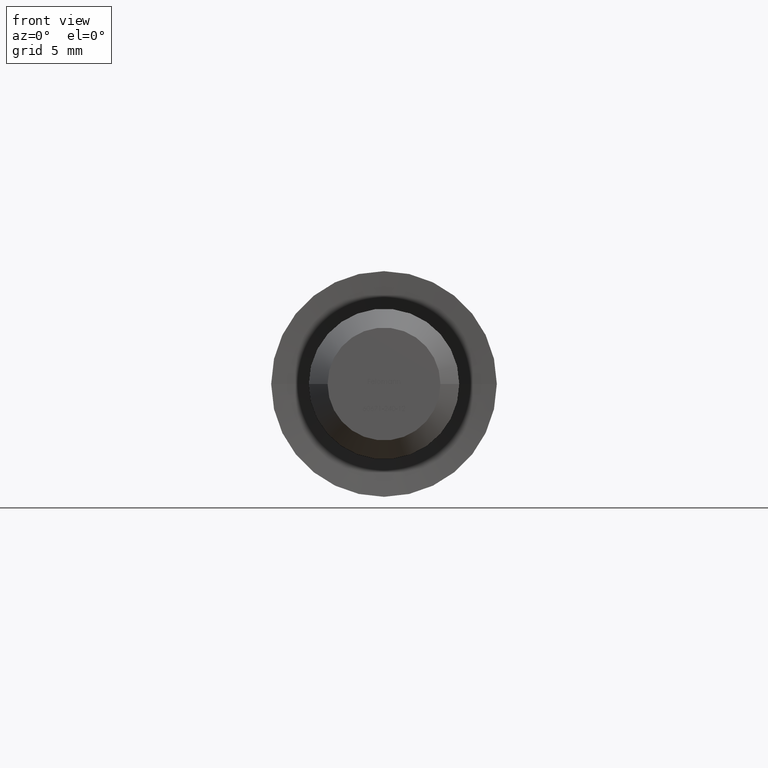
[diagram: clean part render]
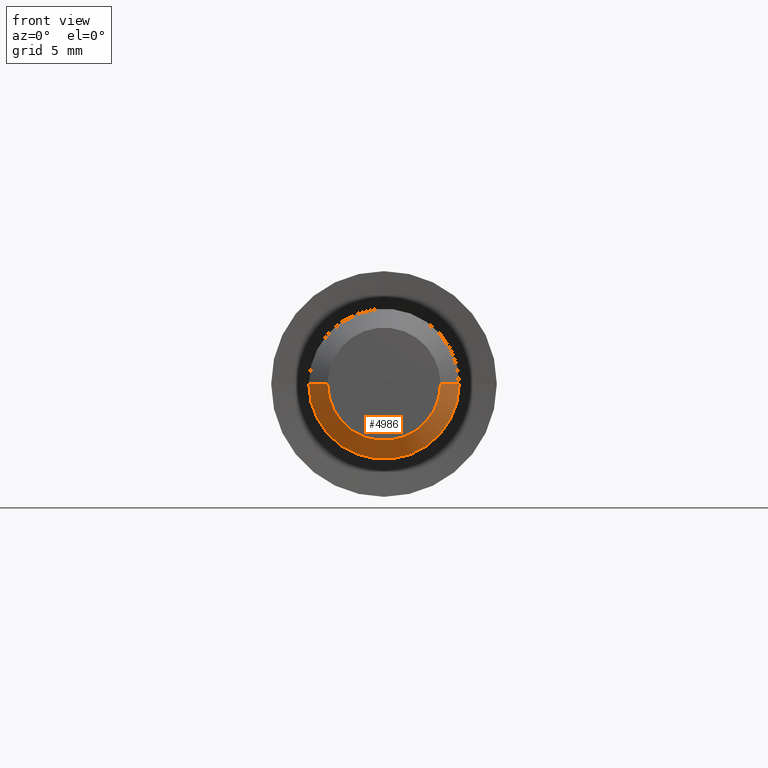
[diagram: same view with one face highlighted and labeled with its STEP entity id]
A machine part, front view. The second image highlights one B-rep face of the part: STEP entity #4986.
In plain terms, the highlighted conical surface has half-angle 45 deg.
Its self-contained STEP definition (entity closure, byte-faithful):
#610 = CARTESIAN_POINT ( 'NONE',  ( 7.369629889236875300E-033, -15.00000000000000000, 0.0000000000000000000 ) ) ;
#686 = EDGE_CURVE ( 'NONE', #12993, #12552, #10944, .T. ) ;
#1645 = DIRECTION ( 'NONE',  ( 0.7071067811865472400, 0.7071067811865479100, 8.659560562354930400E-017 ) ) ;
#1872 = DIRECTION ( 'NONE',  ( -0.7071067811865472400, 0.7071067811865479100, 0.0000000000000000000 ) ) ;
#2067 = CIRCLE ( 'NONE', #2475, 4.000000000000001800 ) ;
#2107 = EDGE_LOOP ( 'NONE', ( #7807, #12509, #11349, #5605 ) ) ;
#2199 = CONICAL_SURFACE ( 'NONE', #5267, 3.000000000000001800, 0.7853981633974479500 ) ;
#2475 = AXIS2_PLACEMENT_3D ( 'NONE', #3629, #4560, #12708 ) ;
#2492 = CARTESIAN_POINT ( 'NONE',  ( 3.000000000000001800, -15.00000000000000000, 4.286263797015738100E-016 ) ) ;
#2756 = CARTESIAN_POINT ( 'NONE',  ( -3.000000000000001800, -15.00000000000000000, 0.0000000000000000000 ) ) ;
#3239 = EDGE_CURVE ( 'NONE', #9325, #4808, #2067, .T. ) ;
#3629 = CARTESIAN_POINT ( 'NONE',  ( 4.956352788505168300E-017, -13.99999999999999800, 0.0000000000000000000 ) ) ;
#4560 = DIRECTION ( 'NONE',  ( -4.956352788505162800E-017, -1.000000000000000000, -0.0000000000000000000 ) ) ;
#4566 = DIRECTION ( 'NONE',  ( -4.956352788505162800E-017, -1.000000000000000000, -0.0000000000000000000 ) ) ;
#4808 = VERTEX_POINT ( 'NONE', #12805 ) ;
#4986 = ADVANCED_FACE ( 'NONE', ( #7590 ), #2199, .T. ) ;
#5082 = DIRECTION ( 'NONE',  ( 4.956352788505162800E-017, 1.000000000000000000, 0.0000000000000000000 ) ) ;
#5200 = CARTESIAN_POINT ( 'NONE',  ( 7.369629889236875300E-033, -15.00000000000000000, 0.0000000000000000000 ) ) ;
#5267 = AXIS2_PLACEMENT_3D ( 'NONE', #5200, #5082, #10125 ) ;
#5605 = ORIENTED_EDGE ( 'NONE', *, *, #3239, .T. ) ;
#5934 = VECTOR ( 'NONE', #1645, 999.9999999999998900 ) ;
#6791 = CARTESIAN_POINT ( 'NONE',  ( -3.000000000000001800, -15.00000000000000000, 0.0000000000000000000 ) ) ;
#7385 = EDGE_CURVE ( 'NONE', #12993, #9325, #10141, .T. ) ;
#7590 = FACE_OUTER_BOUND ( 'NONE', #2107, .T. ) ;
#7807 = ORIENTED_EDGE ( 'NONE', *, *, #9907, .F. ) ;
#8724 = VECTOR ( 'NONE', #1872, 999.9999999999998900 ) ;
#8767 = CARTESIAN_POINT ( 'NONE',  ( -4.000000000000001800, -13.99999999999999800, 0.0000000000000000000 ) ) ;
#9325 = VERTEX_POINT ( 'NONE', #8767 ) ;
#9907 = EDGE_CURVE ( 'NONE', #12552, #4808, #10979, .T. ) ;
#10125 = DIRECTION ( 'NONE',  ( -1.000000000000000000, 0.0000000000000000000, 0.0000000000000000000 ) ) ;
#10141 = LINE ( 'NONE', #2756, #8724 ) ;
#10643 = CARTESIAN_POINT ( 'NONE',  ( 3.000000000000001800, -15.00000000000000000, 3.673940397442061800E-016 ) ) ;
#10944 = CIRCLE ( 'NONE', #11755, 3.000000000000001800 ) ;
#10979 = LINE ( 'NONE', #10643, #5934 ) ;
#11349 = ORIENTED_EDGE ( 'NONE', *, *, #7385, .T. ) ;
#11618 = DIRECTION ( 'NONE',  ( 1.000000000000000000, 0.0000000000000000000, 0.0000000000000000000 ) ) ;
#11755 = AXIS2_PLACEMENT_3D ( 'NONE', #610, #4566, #11618 ) ;
#12509 = ORIENTED_EDGE ( 'NONE', *, *, #686, .F. ) ;
#12552 = VERTEX_POINT ( 'NONE', #2492 ) ;
#12708 = DIRECTION ( 'NONE',  ( 1.000000000000000000, 0.0000000000000000000, 0.0000000000000000000 ) ) ;
#12805 = CARTESIAN_POINT ( 'NONE',  ( 4.000000000000001800, -13.99999999999999800, 4.898587196589414800E-016 ) ) ;
#12993 = VERTEX_POINT ( 'NONE', #6791 ) ;